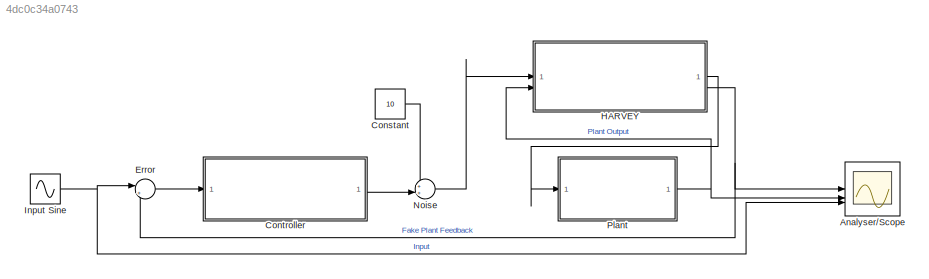
MODEL slx_4dc0c34a0743
KIND model
CONFIG AbsTol = auto
CONFIG EnableMultiTasking = off
CONFIG FixedStep = auto
CONFIG MaxStep = auto
CONFIG MinStep = auto
CONFIG RelTol = 1e-3
CONFIG SampleTimeConstraint = Unconstrained
CONFIG SolverName = VariableStepAuto
CONFIG StartTime = 0.0
CONFIG StopTime = 20
BLOCK [Scope] Analyser//Scope
  Floating = off
  NumInputPorts = 3
  ScopeSpecificationString = Simulink.scopes.TimeScopeBlockCfg('CurrentConfiguration', extmgr.ConfigurationSet(extmgr.Configuration('Core','General UI',true,'FigureColor',[0 0 0]),extmgr.Configuration('Core','Source UI',true),extmgr.Configuration('Sources','WiredSimulink',true,'SampleTime','10e-3'),extmgr.Configuration('Visuals','Time Domain',true,'SerializedDisplays',{struct('MinYLimReal','-1.44575','MaxYLimReal','1.81984','...<+1580ch>
BLOCK [Constant] Constant
  Value = 10
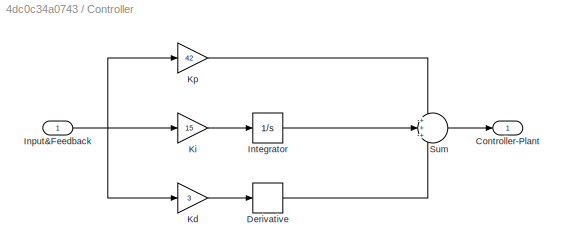
BLOCK [SubSystem] Controller
BLOCK [Outport] Controller/Controller-Plant
BLOCK [Derivative] Controller/Derivative
BLOCK [Inport] Controller/Input&Feedback
BLOCK [Integrator] Controller/Integrator
BLOCK [Gain] Controller/Kd
  Gain = 3
BLOCK [Gain] Controller/Ki
  Gain = 15
BLOCK [Gain] Controller/Kp
  Gain = 42
BLOCK [Sum] Controller/Sum
  Inputs = +++
BLOCK [Sum] Error
  Inputs = |+-
  NameLocation = top
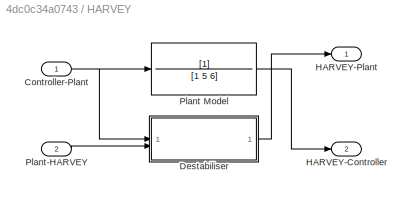
BLOCK [SubSystem] HARVEY
BLOCK [TransferFcn] HARVEY/ Plant Model
  Denominator = [1 5 6]
BLOCK [Inport] HARVEY/Controller-Plant
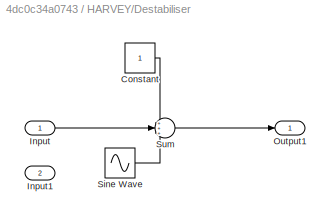
BLOCK [SubSystem] HARVEY/Destabiliser
BLOCK [Constant] HARVEY/Destabiliser/Constant
BLOCK [Inport] HARVEY/Destabiliser/Input
BLOCK [Inport] HARVEY/Destabiliser/Input1
  Port = 2
BLOCK [Outport] HARVEY/Destabiliser/Output1
BLOCK [Sin] HARVEY/Destabiliser/Sine Wave
  Amplitude = 2
  Phase = pi
  SampleTime = 0
BLOCK [Sum] HARVEY/Destabiliser/Sum
  Inputs = +++
BLOCK [Outport] HARVEY/HARVEY-Controller
  Port = 2
BLOCK [Outport] HARVEY/HARVEY-Plant
BLOCK [Inport] HARVEY/Plant-HARVEY
  Port = 2
BLOCK [Sin] Input Sine
  Frequency = 5
  SampleTime = 0
BLOCK [Sum] Noise
  Inputs = ++|
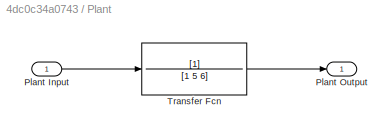
BLOCK [SubSystem] Plant
BLOCK [Inport] Plant/Plant Input
BLOCK [Outport] Plant/Plant Output
BLOCK [TransferFcn] Plant/Transfer Fcn
  Denominator = [1 5 6]
LINE Constant:1 -> Noise:1
LINE Controller/Derivative:1 -> Controller/Sum:3
NET Controller/Input&Feedback:1 -> Controller/Kd:1, Controller/Ki:1, Controller/Kp:1
LINE Controller/Integrator:1 -> Controller/Sum:2
LINE Controller/Kd:1 -> Controller/Derivative:1
LINE Controller/Ki:1 -> Controller/Integrator:1
LINE Controller/Kp:1 -> Controller/Sum:1
LINE Controller/Sum:1 -> Controller/Controller-Plant:1
LINE Controller:1 -> Noise:2
LINE Error:1 -> Controller:1
LINE HARVEY/ Plant Model:1 -> HARVEY/HARVEY-Controller:1
NET HARVEY/Controller-Plant:1 -> HARVEY/ Plant Model:1, HARVEY/Destabiliser:1
LINE HARVEY/Destabiliser/Constant:1 -> HARVEY/Destabiliser/Sum:1
LINE HARVEY/Destabiliser/Input:1 -> HARVEY/Destabiliser/Sum:2
LINE HARVEY/Destabiliser/Sine Wave:1 -> HARVEY/Destabiliser/Sum:3
LINE HARVEY/Destabiliser/Sum:1 -> HARVEY/Destabiliser/Output1:1
LINE HARVEY/Destabiliser:1 -> HARVEY/HARVEY-Plant:1
LINE HARVEY/Plant-HARVEY:1 -> HARVEY/Destabiliser:2
LINE HARVEY:1 -> Plant:1
NET HARVEY:2 -> Analyser//Scope:1, Error:2
NET Input Sine:1 -> Analyser//Scope:3, Error:1
LINE Noise:1 -> HARVEY:1
LINE Plant/Plant Input:1 -> Plant/Transfer Fcn:1
LINE Plant/Transfer Fcn:1 -> Plant/Plant Output:1
NET Plant:1 -> Analyser//Scope:2, HARVEY:2
note: NET lines group one-source signal fan-out (src -> all destinations, sorted); 1:1 wires keep LINE
